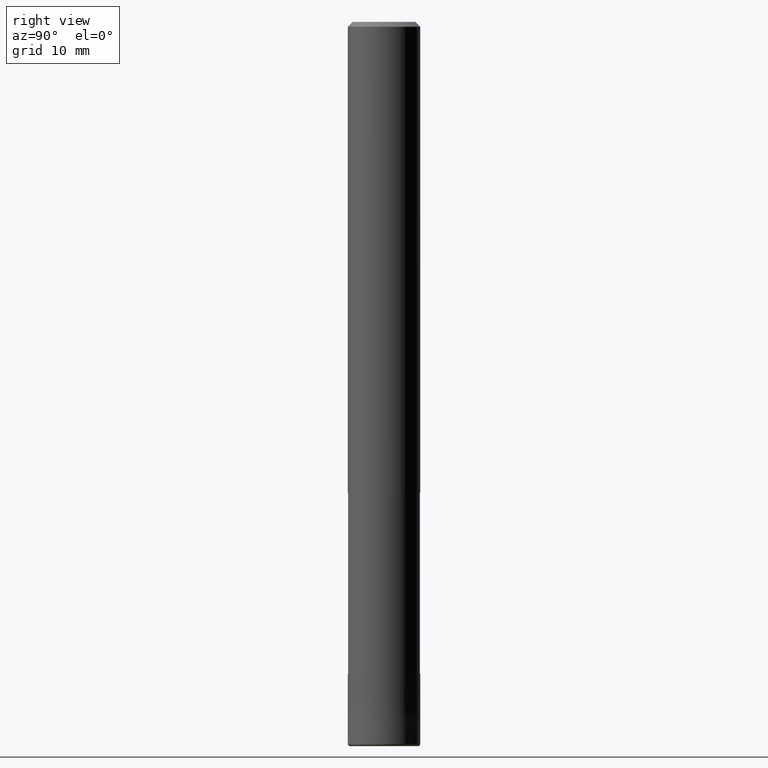
[diagram: clean part render]
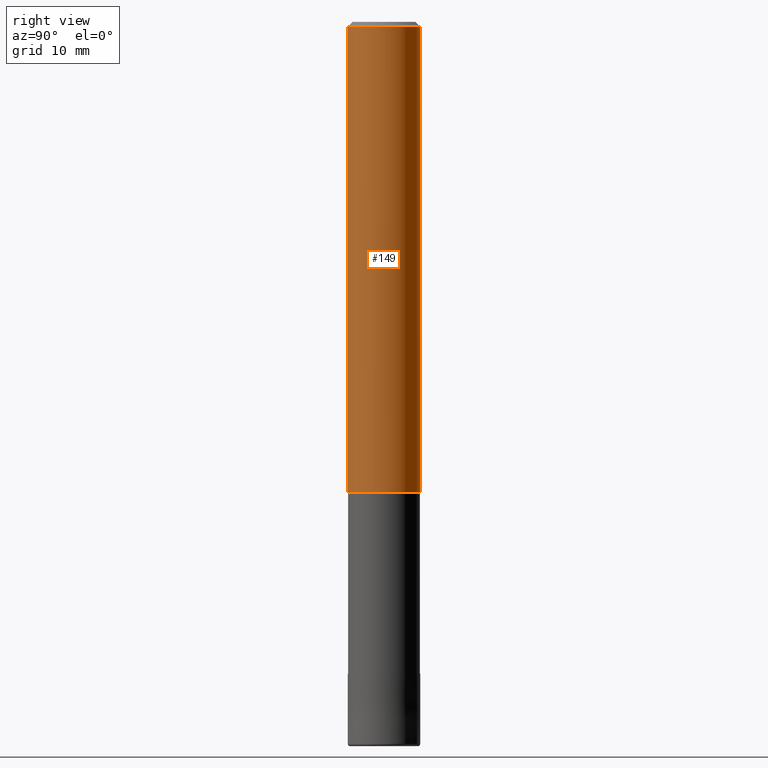
[diagram: same view with one face highlighted and labeled with its STEP entity id]
A machine part, right view. The second image highlights one B-rep face of the part: STEP entity #149.
In plain terms, the highlighted cylindrical surface (edge-blend (fillet) strip) has radius 3 mm, axis along (-0, -0, 1).
Its self-contained STEP definition (entity closure, byte-faithful):
#119=VERTEX_POINT('',#306);
#131=VERTEX_POINT('',#321);
#143=EDGE_CURVE('',#187,#119,#333,.T.);
#149=ADVANCED_FACE('',(#339),#340,.T.);
#153=EDGE_CURVE('',#131,#119,#344,.T.);
#187=VERTEX_POINT('',#385);
#241=EDGE_CURVE('',#187,#261,#447,.T.);
#261=VERTEX_POINT('',#469);
#263=EDGE_CURVE('',#261,#131,#471,.T.);
#306=CARTESIAN_POINT('',(3.67381906146713E-016,-3.0,-0.399999999999999));
#321=CARTESIAN_POINT('',(3.67381906146713E-016,-3.0,-39.0));
#333=CIRCLE('',#545,3.0);
#339=FACE_OUTER_BOUND('',#553,.T.);
#340=CYLINDRICAL_SURFACE('',#554,3.0);
#344=LINE('',#559,#560);
#385=CARTESIAN_POINT('',(0.0,3.0,-0.399999999999999));
#447=LINE('',#686,#687);
#469=CARTESIAN_POINT('',(0.0,3.0,-39.0));
#471=CIRCLE('',#719,3.0);
#545=AXIS2_PLACEMENT_3D('',#774,#775,#776);
#553=EDGE_LOOP('',(#779,#780,#781,#782));
#554=AXIS2_PLACEMENT_3D('',#783,#784,#785);
#559=CARTESIAN_POINT('',(3.67381906146713E-016,-3.0,-19.7));
#560=VECTOR('',#786,1.0);
#686=CARTESIAN_POINT('',(-3.67381906146713E-016,3.0,-19.7));
#687=VECTOR('',#938,1.0);
#719=AXIS2_PLACEMENT_3D('',#966,#967,#968);
#774=CARTESIAN_POINT('',(0.0,0.0,-0.399999999999999));
#775=DIRECTION('',(0.0,0.0,-1.0));
#776=DIRECTION('',(0.0,1.0,0.0));
#779=ORIENTED_EDGE('',*,*,#241,.F.);
#780=ORIENTED_EDGE('',*,*,#143,.T.);
#781=ORIENTED_EDGE('',*,*,#153,.F.);
#782=ORIENTED_EDGE('',*,*,#263,.F.);
#783=CARTESIAN_POINT('',(0.0,0.0,-19.7));
#784=DIRECTION('',(-0.0,-0.0,1.0));
#785=DIRECTION('',(0.0,1.0,0.0));
#786=DIRECTION('',(-0.0,-0.0,1.0));
#938=DIRECTION('',(0.0,0.0,-1.0));
#966=CARTESIAN_POINT('',(0.0,0.0,-39.0));
#967=DIRECTION('',(0.0,0.0,-1.0));
#968=DIRECTION('',(0.0,1.0,0.0));